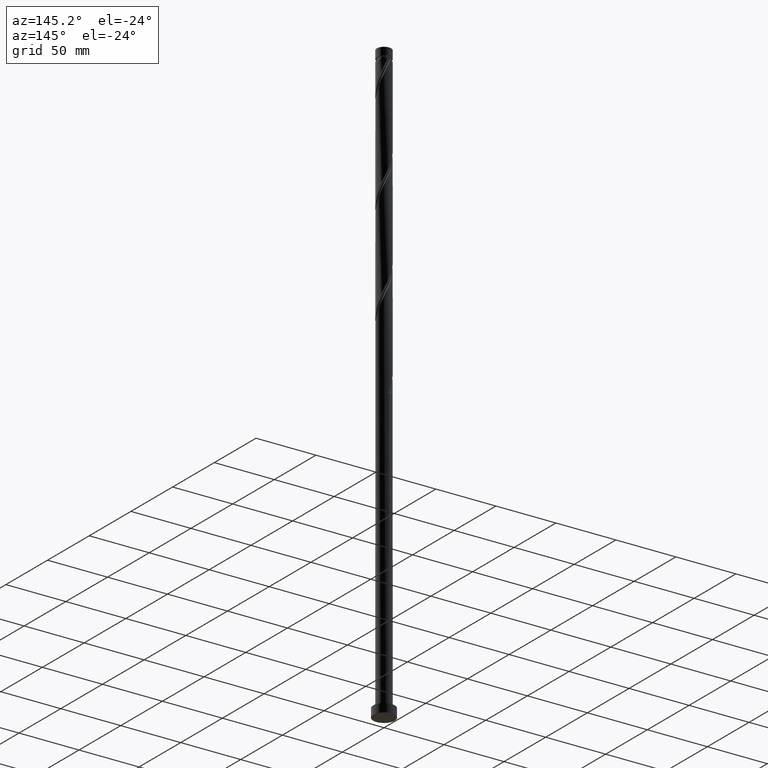
[diagram: clean part render]
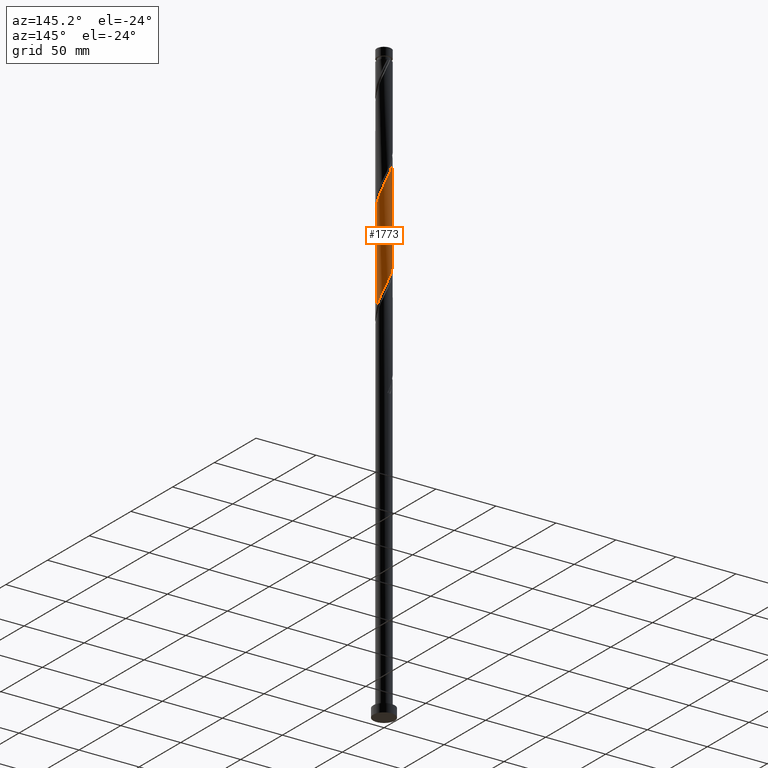
[diagram: same view with one face highlighted and labeled with its STEP entity id]
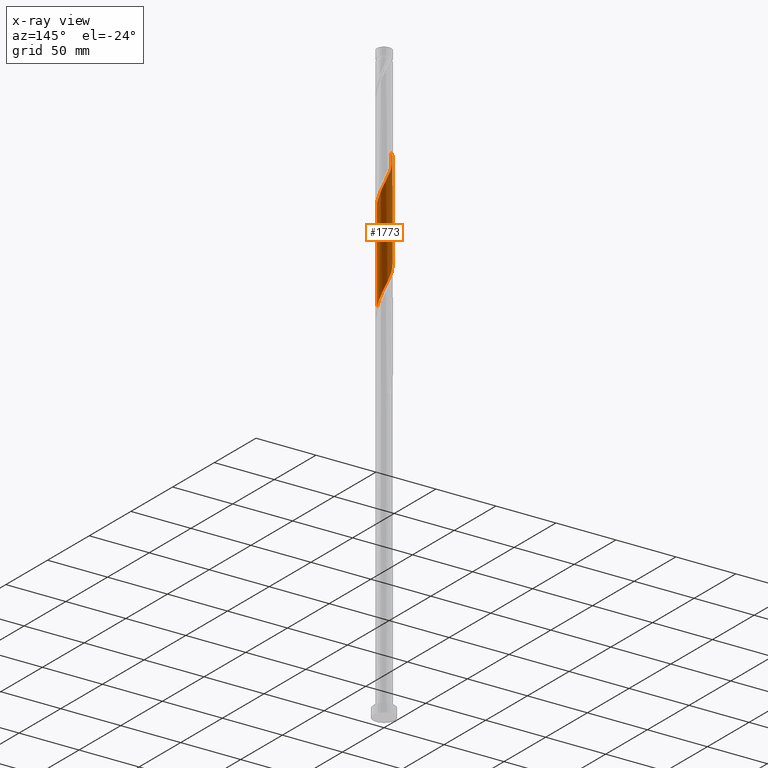
[diagram: x-ray of the same camera — body ghosted, the highlighted face saturated]
A machine part, auxiliary view. The second image highlights one B-rep face of the part: STEP entity #1773.
The next image is the same camera in x-ray: the body ghosted, the highlighted face saturated — about 0% of this face is hidden behind the body in this view.
In plain terms, the highlighted cylindrical surface (edge-blend (fillet) strip) has radius 6 mm, axis along (-0, -0, -1).
Its self-contained STEP definition (entity closure, byte-faithful):
#26 = CARTESIAN_POINT ( 'NONE',  ( -5.889329900276903729, 1.147080348408325401, 423.2383992748708579 ) ) ;
#65 = CARTESIAN_POINT ( 'NONE',  ( -5.997597250804055591, 0.6148554727878231541, 346.4154826082042291 ) ) ;
#111 = CARTESIAN_POINT ( 'NONE',  ( -2.273990787862923302, 5.552383803080851443, 332.0925659415375435 ) ) ;
#113 = CARTESIAN_POINT ( 'NONE',  ( -4.675710161127278219, 3.806173212611418943, 416.7279826082041723 ) ) ;
#114 = LINE ( 'NONE', #942, #499 ) ;
#120 = CARTESIAN_POINT ( 'NONE',  ( -4.645224462582749680, 3.843320143767924080, 338.6029826082042860 ) ) ;
#122 = CARTESIAN_POINT ( 'NONE',  ( 5.997597250804064473, 0.6148554727878240422, 385.4779826082042860 ) ) ;
#131 = DIRECTION ( 'NONE',  ( -0.000000000000000000, -0.000000000000000000, -1.000000000000000000 ) ) ;
#154 = CARTESIAN_POINT ( 'NONE',  ( 0.6148554727878232651, 5.997597250804055591, 325.5821492748708579 ) ) ;
#268 = CARTESIAN_POINT ( 'NONE',  ( 5.328415259162966322, 2.820852860605945978, 312.5613159415376572 ) ) ;
#270 = CARTESIAN_POINT ( 'NONE',  ( -3.353276816205138733, 4.975493402055845671, 412.8217326082042291 ) ) ;
#288 = ORIENTED_EDGE ( 'NONE', *, *, #1716, .F. ) ;
#290 = FACE_OUTER_BOUND ( 'NONE', #1687, .T. ) ;
#308 = CARTESIAN_POINT ( 'NONE',  ( -1.773114376268076775, 5.762402749195954854, 408.9154826082041154 ) ) ;
#312 = LINE ( 'NONE', #2077, #973 ) ;
#316 = ORIENTED_EDGE ( 'NONE', *, *, #1944, .T. ) ;
#317 = CARTESIAN_POINT ( 'NONE',  ( -3.313513036608678242, 5.002062710145119162, 334.6967326082041723 ) ) ;
#413 = VERTEX_POINT ( 'NONE', #1555 ) ;
#429 = AXIS2_PLACEMENT_3D ( 'NONE', #1601, #131, #463 ) ;
#431 = CARTESIAN_POINT ( 'NONE',  ( 5.002062710145120050, 3.313513036608676909, 313.8633992748708579 ) ) ;
#441 = CARTESIAN_POINT ( 'NONE',  ( 2.318173932455211084, 5.534082545362432271, 321.6758992748708579 ) ) ;
#443 = CARTESIAN_POINT ( 'NONE',  ( 4.645224462582758562, 3.843320143767928965, 393.2904826082042291 ) ) ;
#452 = CARTESIAN_POINT ( 'NONE',  ( 1.727128715119907287, 5.776352346998741893, 401.1029826082043428 ) ) ;
#463 = DIRECTION ( 'NONE',  ( -1.000000000000000000, 0.000000000000000000, 0.000000000000000000 ) ) ;
#465 = CARTESIAN_POINT ( 'NONE',  ( 6.000000000000010658, 8.335047501442202684E-15, 384.1232022968739557 ) ) ;
#474 = ORIENTED_EDGE ( 'NONE', *, *, #770, .F. ) ;
#499 = VECTOR ( 'NONE', #625, 1000.000000000000000 ) ;
#580 = CARTESIAN_POINT ( 'NONE',  ( -6.000000000000012434, 1.465715866532681281E-14, 425.7898689635407550 ) ) ;
#585 = VERTEX_POINT ( 'NONE', #590 ) ;
#588 = CARTESIAN_POINT ( 'NONE',  ( -5.305762341528927450, 2.863233488642341840, 341.2071492748710284 ) ) ;
#590 = CARTESIAN_POINT ( 'NONE',  ( 6.000000000000000000, 5.026749354067486738E-15, 306.1035962528677032 ) ) ;
#601 = CARTESIAN_POINT ( 'NONE',  ( -5.879999999999999005, 1.193984924527949243, 345.1133992748708010 ) ) ;
#611 = ORIENTED_EDGE ( 'NONE', *, *, #641, .F. ) ;
#612 = CARTESIAN_POINT ( 'NONE',  ( 5.889329900276893071, 1.147080348408323847, 308.6550659415375435 ) ) ;
#614 = CARTESIAN_POINT ( 'NONE',  ( 3.806173212611418055, 4.675710161127279996, 395.8946492748709147 ) ) ;
#622 = CARTESIAN_POINT ( 'NONE',  ( 0.02391174554554039919, 5.999952352179555248, 326.8842326082041723 ) ) ;
#625 = DIRECTION ( 'NONE',  ( -0.000000000000000000, -0.000000000000000000, -1.000000000000000000 ) ) ;
#634 = VERTEX_POINT ( 'NONE', #580 ) ;
#636 = CARTESIAN_POINT ( 'NONE',  ( 1.193984924527950353, 5.879999999999999005, 324.2800659415377140 ) ) ;
#641 = EDGE_CURVE ( 'NONE', #413, #634, #1220, .T. ) ;
#753 = CARTESIAN_POINT ( 'NONE',  ( 0.5670319816967451798, 6.002307453555064676, 403.7071492748709147 ) ) ;
#764 =( BOUNDED_CURVE ( )  B_SPLINE_CURVE ( 2, ( #1537, #1690, #832, #65, #601, #1443, #929, #588, #1586, #120, #1259, #1771, #317, #1576, #111, #1730, #1088, #2046, #622, #154, #636, #1411, #441, #1076, #1101, #788, #776, #1886, #431, #268, #2071, #916, #612, #1924, #1270 ),
 .UNSPECIFIED., .F., .T. ) 
 B_SPLINE_CURVE_WITH_KNOTS ( ( 3, 2, 2, 2, 2, 2, 2, 2, 2, 2, 2, 2, 2, 2, 2, 2, 2, 3 ),
 ( 0.6795286902180873723, 0.6796875000000000000, 0.6875000000000000000, 0.6953125000000000000, 0.7031250000000000000, 0.7109375000000000000, 0.7187500000000000000, 0.7265625000000000000, 0.7343750000000000000, 0.7421875000000000000, 0.7500000000000000000, 0.7578125000000000000, 0.7656250000000000000, 0.7734375000000000000, 0.7812500000000000000, 0.7890625000000000000, 0.7968750000000000000, 0.8045286902180871502 ),
 .UNSPECIFIED. ) 
 CURVE ( )  GEOMETRIC_REPRESENTATION_ITEM ( )  RATIONAL_B_SPLINE_CURVE ( ( 0.9089165573359433425, 0.9090019243628481016, 0.9090909090909398138, 0.9047133878838459209, 0.9090909090909398138, 0.9047133878838459209, 0.9090909090909398138, 0.9047133878838459209, 0.9090909090909398138, 0.9047133878838459209, 0.9090909090909398138, 0.9047133878838459209, 0.9090909090909398138, 0.9047133878838459209, 0.9090909090909398138, 0.9047133878838459209, 0.9090909090909398138, 0.9047133878838459209, 0.9090909090909398138, 0.9047133878838459209, 0.9090909090909398138, 0.9047133878838459209, 0.9090909090909398138, 0.9047133878838459209, 0.9090909090909398138, 0.9047133878838459209, 0.9090909090909398138, 0.9047133878838459209, 0.9090909090909398138, 0.9047133878838459209, 0.9090909090909398138, 0.9047133878838459209, 0.9090909090909398138, 0.9048023726119377441, 0.9089165573359432315 ) ) 
 REPRESENTATION_ITEM ( '' )  );
#770 = EDGE_CURVE ( 'NONE', #634, #1463, #114, .T. ) ;
#776 = CARTESIAN_POINT ( 'NONE',  ( 4.259515152447596265, 4.225698837597079205, 316.4675659415375435 ) ) ;
#778 = CARTESIAN_POINT ( 'NONE',  ( 5.880000000000010552, 1.193984924527949021, 386.7800659415375435 ) ) ;
#788 = CARTESIAN_POINT ( 'NONE',  ( 3.843320143767924968, 4.645224462582748792, 317.7696492748709147 ) ) ;
#790 = CARTESIAN_POINT ( 'NONE',  ( -2.318173932455211528, 5.534082545362443817, 410.2175659415376003 ) ) ;
#832 = CARTESIAN_POINT ( 'NONE',  ( -5.999952352179555248, 0.02391174554554061429, 347.7175659415375435 ) ) ;
#908 = CARTESIAN_POINT ( 'NONE',  ( 4.975493402055844783, 3.353276816205139177, 391.9883992748708579 ) ) ;
#916 = CARTESIAN_POINT ( 'NONE',  ( 5.776352346998731235, 1.727128715119901292, 309.9571492748709147 ) ) ;
#929 = CARTESIAN_POINT ( 'NONE',  ( -5.534082545362432271, 2.318173932455207975, 342.5092326082042291 ) ) ;
#940 = CYLINDRICAL_SURFACE ( 'NONE', #429, 6.000000000000000888 ) ;
#942 = CARTESIAN_POINT ( 'NONE',  ( -6.000000000000000888, 0.000000000000000000, 500.0000000000000000 ) ) ;
#952 = CARTESIAN_POINT ( 'NONE',  ( -5.776352346998743670, 1.727128715119906399, 421.9363159415375435 ) ) ;
#973 = VECTOR ( 'NONE', #2052, 1000.000000000000000 ) ;
#1067 = CARTESIAN_POINT ( 'NONE',  ( 5.305762341528935444, 2.863233488642343616, 390.6863159415376003 ) ) ;
#1076 = CARTESIAN_POINT ( 'NONE',  ( 2.863233488642342728, 5.305762341528925674, 320.3738159415376003 ) ) ;
#1088 = CARTESIAN_POINT ( 'NONE',  ( -1.147080348408322292, 5.889329900276893959, 329.4883992748708579 ) ) ;
#1101 = CARTESIAN_POINT ( 'NONE',  ( 3.353276816205134736, 4.975493402055835901, 319.0717326082042291 ) ) ;
#1103 = CARTESIAN_POINT ( 'NONE',  ( 1.147080348408328954, 5.889329900276901952, 402.4050659415376003 ) ) ;
#1118 = CARTESIAN_POINT ( 'NONE',  ( -5.328415259162975204, 2.820852860605950418, 419.3321492748709147 ) ) ;
#1220 =( BOUNDED_CURVE ( )  B_SPLINE_CURVE ( 2, ( #465, #1588, #1239, #122, #778, #1879, #1603, #1067, #908, #443, #2060, #614, #1566, #1888, #1732, #452, #1103, #753, #1413, #1751, #1903, #308, #790, #2048, #270, #1445, #1578, #113, #1423, #1118, #1760, #952, #26, #1500, #1466 ),
 .UNSPECIFIED., .F., .T. ) 
 B_SPLINE_CURVE_WITH_KNOTS ( ( 3, 2, 2, 2, 2, 2, 2, 2, 2, 2, 2, 2, 2, 2, 2, 2, 2, 3 ),
 ( 0.4295286902180867616, 0.4296875000000000000, 0.4375000000000000000, 0.4453125000000000000, 0.4531250000000000000, 0.4609375000000000000, 0.4687500000000000000, 0.4765625000000000000, 0.4843750000000000000, 0.4921875000000000000, 0.5000000000000000000, 0.5078125000000000000, 0.5156250000000000000, 0.5234375000000000000, 0.5312500000000000000, 0.5390625000000000000, 0.5468750000000000000, 0.5545286902180869282 ),
 .UNSPECIFIED. ) 
 CURVE ( )  GEOMETRIC_REPRESENTATION_ITEM ( )  RATIONAL_B_SPLINE_CURVE ( ( 0.9089165573359497818, 0.9090019243628547629, 0.9090909090909468082, 0.9047133878838529153, 0.9090909090909468082, 0.9047133878838529153, 0.9090909090909468082, 0.9047133878838529153, 0.9090909090909468082, 0.9047133878838529153, 0.9090909090909468082, 0.9047133878838529153, 0.9090909090909468082, 0.9047133878838529153, 0.9090909090909468082, 0.9047133878838529153, 0.9090909090909468082, 0.9047133878838529153, 0.9090909090909468082, 0.9047133878838529153, 0.9090909090909468082, 0.9047133878838529153, 0.9090909090909468082, 0.9047133878838529153, 0.9090909090909468082, 0.9047133878838529153, 0.9090909090909468082, 0.9047133878838529153, 0.9090909090909468082, 0.9047133878838529153, 0.9090909090909468082, 0.9047133878838529153, 0.9090909090909468082, 0.9048023726119448495, 0.9089165573359500039 ) ) 
 REPRESENTATION_ITEM ( '' )  );
#1239 = CARTESIAN_POINT ( 'NONE',  ( 5.999952352179564130, 0.02391174554553667300, 384.1758992748709147 ) ) ;
#1259 = CARTESIAN_POINT ( 'NONE',  ( -4.225698837597079205, 4.259515152447597153, 337.3008992748708579 ) ) ;
#1270 = CARTESIAN_POINT ( 'NONE',  ( 6.000000000000000000, 5.026749354067485949E-15, 306.1035962528677032 ) ) ;
#1305 = CARTESIAN_POINT ( 'NONE',  ( -6.000000000000000888, 2.899187475065619010E-14, 347.7702629195342752 ) ) ;
#1411 = CARTESIAN_POINT ( 'NONE',  ( 1.773114376268074333, 5.762402749195944196, 322.9779826082042291 ) ) ;
#1413 = CARTESIAN_POINT ( 'NONE',  ( -0.02391174554553645443, 5.999952352179564130, 405.0092326082041154 ) ) ;
#1423 = CARTESIAN_POINT ( 'NONE',  ( -5.002062710145126267, 3.313513036608685347, 418.0300659415376003 ) ) ;
#1443 = CARTESIAN_POINT ( 'NONE',  ( -5.762402749195944196, 1.773114376268075443, 343.8113159415376003 ) ) ;
#1445 = CARTESIAN_POINT ( 'NONE',  ( -3.843320143767929409, 4.645224462582758562, 414.1238159415375435 ) ) ;
#1463 = VERTEX_POINT ( 'NONE', #1305 ) ;
#1466 = CARTESIAN_POINT ( 'NONE',  ( -6.000000000000011546, 1.465715866532681281E-14, 425.7898689635407550 ) ) ;
#1500 = CARTESIAN_POINT ( 'NONE',  ( -6.000000000000006217, 0.5788788895739100937, 424.5138888581246306 ) ) ;
#1537 = CARTESIAN_POINT ( 'NONE',  ( -6.000000000000000888, 2.899187475065619010E-14, 347.7702629195342752 ) ) ;
#1555 = CARTESIAN_POINT ( 'NONE',  ( 6.000000000000010658, 8.335047501442204261E-15, 384.1232022968739557 ) ) ;
#1566 = CARTESIAN_POINT ( 'NONE',  ( 3.313513036608686235, 5.002062710145124491, 397.1967326082041723 ) ) ;
#1576 = CARTESIAN_POINT ( 'NONE',  ( -2.820852860605945533, 5.328415259162966322, 333.3946492748710284 ) ) ;
#1578 = CARTESIAN_POINT ( 'NONE',  ( -4.259515152447604258, 4.225698837597088975, 415.4258992748708579 ) ) ;
#1586 = CARTESIAN_POINT ( 'NONE',  ( -4.975493402055837677, 3.353276816205132516, 339.9050659415376003 ) ) ;
#1588 = CARTESIAN_POINT ( 'NONE',  ( 6.000000000000010658, 0.01195592024552998359, 384.1495558513911988 ) ) ;
#1601 = CARTESIAN_POINT ( 'NONE',  ( 0.000000000000000000, 0.000000000000000000, 500.0000000000000000 ) ) ;
#1603 = CARTESIAN_POINT ( 'NONE',  ( 5.534082545362443817, 2.318173932455211972, 389.3842326082042291 ) ) ;
#1687 = EDGE_LOOP ( 'NONE', ( #611, #316, #288, #474 ) ) ;
#1690 = CARTESIAN_POINT ( 'NONE',  ( -6.000000000000000888, 0.01195592024557990025, 347.7439093650170889 ) ) ;
#1716 = EDGE_CURVE ( 'NONE', #1463, #585, #764, .T. ) ;
#1730 = CARTESIAN_POINT ( 'NONE',  ( -1.727128715119901736, 5.776352346998731235, 330.7904826082041723 ) ) ;
#1732 = CARTESIAN_POINT ( 'NONE',  ( 2.273990787862928187, 5.552383803080857660, 399.8008992748708579 ) ) ;
#1751 = CARTESIAN_POINT ( 'NONE',  ( -0.6148554727878237092, 5.997597250804064473, 406.3113159415376003 ) ) ;
#1760 = CARTESIAN_POINT ( 'NONE',  ( -5.552383803080857660, 2.273990787862928631, 420.6342326082042291 ) ) ;
#1771 = CARTESIAN_POINT ( 'NONE',  ( -3.806173212611410950, 4.675710161127272002, 335.9988159415376572 ) ) ;
#1773 = ADVANCED_FACE ( 'NONE', ( #290 ), #940, .T. ) ;
#1879 = CARTESIAN_POINT ( 'NONE',  ( 5.762402749195955742, 1.773114376268073666, 388.0821492748709716 ) ) ;
#1886 = CARTESIAN_POINT ( 'NONE',  ( 4.675710161127275555, 3.806173212611407841, 315.1654826082042860 ) ) ;
#1888 = CARTESIAN_POINT ( 'NONE',  ( 2.820852860605953083, 5.328415259162973427, 398.4988159415375435 ) ) ;
#1903 = CARTESIAN_POINT ( 'NONE',  ( -1.193984924527948577, 5.880000000000010552, 407.6133992748709716 ) ) ;
#1924 = CARTESIAN_POINT ( 'NONE',  ( 6.000000000000000888, 0.5788788895738899987, 307.3795763582836571 ) ) ;
#1944 = EDGE_CURVE ( 'NONE', #413, #585, #312, .T. ) ;
#2046 = CARTESIAN_POINT ( 'NONE',  ( -0.5670319816967425153, 6.002307453555054906, 328.1863159415375435 ) ) ;
#2048 = CARTESIAN_POINT ( 'NONE',  ( -2.863233488642344948, 5.305762341528934556, 411.5196492748709147 ) ) ;
#2052 = DIRECTION ( 'NONE',  ( -0.000000000000000000, -0.000000000000000000, -1.000000000000000000 ) ) ;
#2060 = CARTESIAN_POINT ( 'NONE',  ( 4.225698837597090751, 4.259515152447602482, 394.5925659415375435 ) ) ;
#2071 = CARTESIAN_POINT ( 'NONE',  ( 5.552383803080851443, 2.273990787862920193, 311.2592326082042291 ) ) ;
#2077 = CARTESIAN_POINT ( 'NONE',  ( 6.000000000000000888, 7.347880794884120722E-16, 500.0000000000000000 ) ) ;